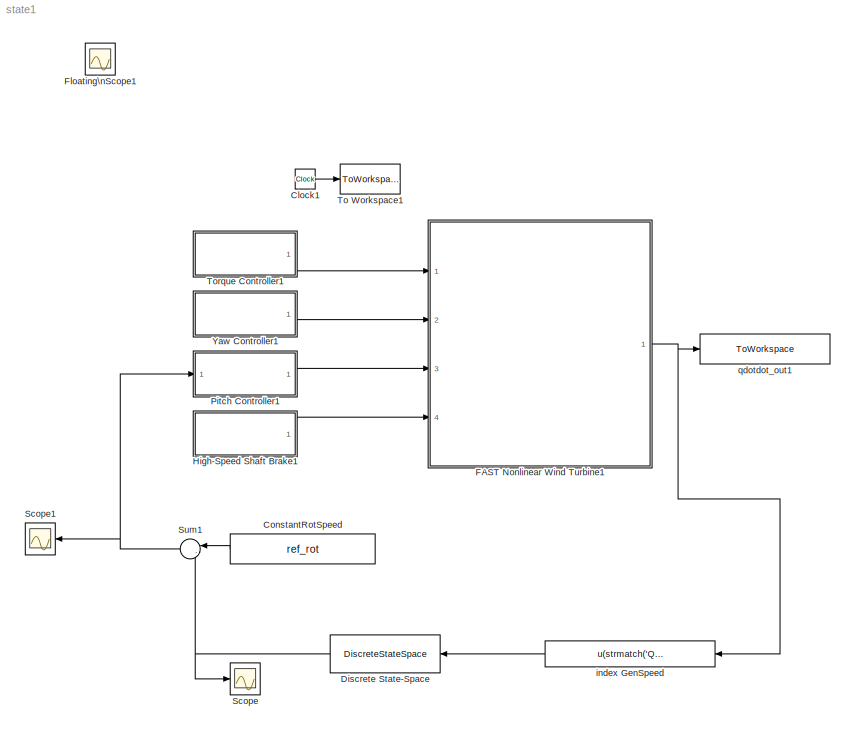
MODEL state1
KIND model
BLOCK [Clock] Clock1
  SID = 189
BLOCK [Constant] ConstantRotSpeed
  SID = 181
  Value = ref_rot
BLOCK [DiscreteStateSpace] Discrete State-Space
  A = alpha
  B = 1-alpha
  C = alpha
  D = 1-alpha
  InitialCondition = ref_rot
  SID = 238
  SampleTime = DT
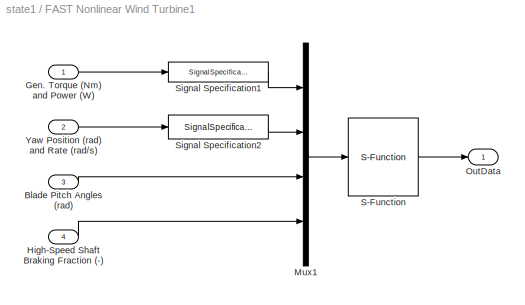
BLOCK [SubSystem] FAST Nonlinear Wind Turbine1
  Ports = [4, 1]
  RequestExecContextInheritance = off
  SID = 190
  Variant = off
BLOCK [Inport] FAST Nonlinear Wind Turbine1/Blade Pitch Angles (rad)
  IconDisplay = Port number
  Port = 3
  SID = 193
BLOCK [Inport] FAST Nonlinear Wind Turbine1/Gen. Torque (Nm) and Power (W)
  IconDisplay = Port number
  SID = 191
BLOCK [Inport] FAST Nonlinear Wind Turbine1/High-Speed Shaft Braking Fraction (-)
  IconDisplay = Port number
  Port = 4
  SID = 194
BLOCK [Mux] FAST Nonlinear Wind Turbine1/Mux1
  DisplayOption = bar
  Ports = [4, 1]
  SID = 195
BLOCK [Outport] FAST Nonlinear Wind Turbine1/OutData
  IconDisplay = Port number
  SID = 199
BLOCK [S-Function] FAST Nonlinear Wind Turbine1/S-Function
  EnableBusSupport = off
  FunctionName = FAST_SFunc
  Parameters = FAST_InputFileName, TMax, 0
  Ports = [1, 1]
  SFcnIsStateOwnerBlock = off
  SFunctionDeploymentMode = off
  SID = 196
BLOCK [SignalSpecification] FAST Nonlinear Wind Turbine1/Signal Specification1
  Dimensions = 2
  OutDataTypeStr = double
  SID = 197
  SignalType = real
BLOCK [SignalSpecification] FAST Nonlinear Wind Turbine1/Signal Specification2
  Dimensions = 2
  OutDataTypeStr = double
  SID = 198
  SignalType = real
BLOCK [Inport] FAST Nonlinear Wind Turbine1/Yaw Position (rad) and Rate (rad//s)
  IconDisplay = Port number
  Port = 2
  SID = 192
BLOCK [Scope] Floating\nScope1
  IOType = viewer
  NumInputPorts = 1
  Ports = []
  SID = 148
  ScopeSpecificationString = C++SS(StrPVP('Location','[207, 245, 1311, 700]'),StrPVP('Open','off'),MxPVP('AxesTitles',53,'struct(''axes1'',''%<SignalLabel>'')'),MxPVP('ScopeGraphics',56,'struct(''FigureColor'',''[0.5 0.5 0.5]'',''AxesColor'',''[0 0 0]'',''AxesTickColor'',''[1 1 1]'',''LineColors'',''[1 1 0;1 0 1;0 1 1;1 0 0;0 1 0;0 0 1]'',''LineStyles'',''-|-|-|-|-|-'',''LineWidths'',''[0.5 0.5 0.5 0.5 0.5 0.5]'',''MarkerStyl...<+278ch>
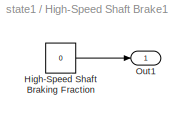
BLOCK [SubSystem] High-Speed Shaft Brake1
  Ports = [0, 1]
  RequestExecContextInheritance = off
  SID = 200
  Variant = off
BLOCK [Constant] High-Speed Shaft Brake1/High-Speed Shaft Braking Fraction
  SID = 201
  Value = 0
BLOCK [Outport] High-Speed Shaft Brake1/Out1
  IconDisplay = Port number
  SID = 202
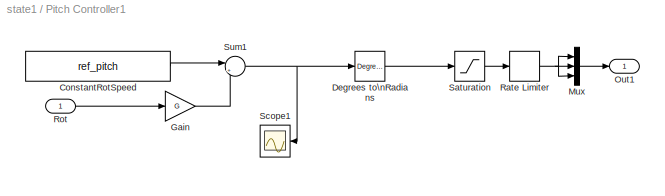
BLOCK [SubSystem] Pitch Controller1
  Ports = [1, 1]
  RequestExecContextInheritance = off
  SID = 203
  Variant = off
BLOCK [Constant] Pitch Controller1/ConstantRotSpeed
  SID = 237
  Value = ref_pitch
BLOCK [Reference] Pitch Controller1/Degrees to\nRadians  REF=simulink_extras/Transformations/Degrees to\nRadians
  Ports = [1, 1]
  SID = 233
  SourceBlock = simulink_extras/Transformations/Degrees to\nRadians
  SourceProductBaseCode = SL
  SourceProductName = Simulink
  SourceType = DegreesToRadians
BLOCK [Gain] Pitch Controller1/Gain
  Gain = G
  OutDataTypeStr = Inherit: Inherit via internal rule
  ParamDataTypeStr = Inherit: Inherit via internal rule
  SID = 240
  SaturateOnIntegerOverflow = off
BLOCK [Mux] Pitch Controller1/Mux
  DisplayOption = bar
  Inputs = 3
  Ports = [3, 1]
  SID = 217
BLOCK [Outport] Pitch Controller1/Out1
  IconDisplay = Port number
  SID = 220
BLOCK [RateLimiter] Pitch Controller1/Rate Limiter
  FallingSlewLimit = -PC_MaxRat
  RisingSlewLimit = PC_MaxRat
  SID = 218
  SampleTimeMode = inherited
BLOCK [Inport] Pitch Controller1/Rot
  IconDisplay = Port number
  SID = 235
BLOCK [Saturate] Pitch Controller1/Saturation
  InputPortMap = u0
  LowerLimit = PC_MinPit
  Ports = [1, 1]
  SID = 219
  UpperLimit = PC_MaxPit
BLOCK [Scope] Pitch Controller1/Scope1
  NumInputPorts = 1
  Ports = [1]
  SID = 239
  ScopeSpecificationString = C++SS(StrPVP('Location','[1, 49, 1921, 1039]'),StrPVP('Open','off'),MxPVP('AxesTitles',53,'struct(''axes1'',''%<SignalLabel>'')'),MxPVP('ScopeGraphics',56,'struct(''FigureColor'',''[0.5 0.5 0.5]'',''AxesColor'',''[0 0 0]'',''AxesTickColor'',''[1 1 1]'',''LineColors'',''[1 1 0;1 0 1;0 1 1;1 0 0;0 1 0;0 0 1]'',''LineStyles'',''-|-|-|-|-|-'',''LineWidths'',''[0.5 0.5 0.5 0.5 0.5 0.5]'',''MarkerStyles...<+317ch>
BLOCK [Sum] Pitch Controller1/Sum1
  IconShape = round
  InputSameDT = off
  Inputs = |++
  OutDataTypeStr = Inherit: Inherit via internal rule
  Ports = [2, 1]
  SID = 236
  SaturateOnIntegerOverflow = off
BLOCK [Scope] Scope
  NumInputPorts = 1
  Ports = [1]
  SID = 183
  ScopeSpecificationString = C++SS(StrPVP('Location','[957, 57, 1915, 1038]'),StrPVP('Open','off'),MxPVP('AxesTitles',53,'struct(''axes1'',''%<SignalLabel>'')'),MxPVP('ScopeGraphics',56,'struct(''FigureColor'',''[0.5 0.5 0.5]'',''AxesColor'',''[0 0 0]'',''AxesTickColor'',''[1 1 1]'',''LineColors'',''[1 1 0;1 0 1;0 1 1;1 0 0;0 1 0;0 0 1]'',''LineStyles'',''-|-|-|-|-|-'',''LineWidths'',''[0.5 0.5 0.5 0.5 0.5 0.5]'',''MarkerStyl...<+283ch>
BLOCK [Scope] Scope1
  NumInputPorts = 1
  Ports = [1]
  SID = 185
  ScopeSpecificationString = C++SS(StrPVP('Location','[336, 149, 660, 388]'),StrPVP('Open','off'),MxPVP('AxesTitles',53,'struct(''axes1'',''%<SignalLabel>'')'),MxPVP('ScopeGraphics',56,'struct(''FigureColor'',''[0.5 0.5 0.5]'',''AxesColor'',''[0 0 0]'',''AxesTickColor'',''[1 1 1]'',''LineColors'',''[1 1 0;1 0 1;0 1 1;1 0 0;0 1 0;0 0 1]'',''LineStyles'',''-|-|-|-|-|-'',''LineWidths'',''[0.5 0.5 0.5 0.5 0.5 0.5]'',''MarkerStyle...<+317ch>
BLOCK [Sum] Sum1
  IconShape = round
  InputSameDT = off
  Inputs = |-+
  OutDataTypeStr = Inherit: Inherit via internal rule
  Ports = [2, 1]
  SID = 182
  SaturateOnIntegerOverflow = off
BLOCK [ToWorkspace] To Workspace1
  MaxDataPoints = inf
  Ports = [1]
  SID = 221
  SampleTime = -1
  VariableName = Time1
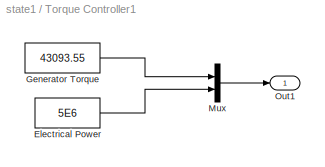
BLOCK [SubSystem] Torque Controller1
  Ports = [0, 1]
  RequestExecContextInheritance = off
  SID = 222
  Variant = off
BLOCK [Constant] Torque Controller1/Electrical Power
  SID = 223
  Value = 5E6
BLOCK [Constant] Torque Controller1/Generator Torque
  SID = 224
  Value = 43093.55
BLOCK [Mux] Torque Controller1/Mux
  DisplayOption = bar
  Inputs = 2
  Ports = [2, 1]
  SID = 225
BLOCK [Outport] Torque Controller1/Out1
  IconDisplay = Port number
  SID = 226
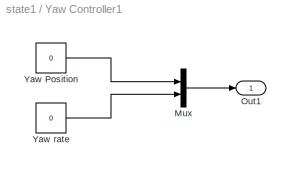
BLOCK [SubSystem] Yaw Controller1
  Ports = [0, 1]
  RequestExecContextInheritance = off
  SID = 227
  Variant = off
BLOCK [Mux] Yaw Controller1/Mux
  DisplayOption = bar
  Inputs = 2
  Ports = [2, 1]
  SID = 228
BLOCK [Outport] Yaw Controller1/Out1
  IconDisplay = Port number
  SID = 231
BLOCK [Constant] Yaw Controller1/Yaw Position
  SID = 229
  Value = 0
BLOCK [Constant] Yaw Controller1/Yaw rate
  SID = 230
  Value = 0
BLOCK [Fcn] index GenSpeed
  Expr = u(strmatch('QD_GeAz', OutList))
  SID = 87
BLOCK [ToWorkspace] qdotdot_out1
  MaxDataPoints = inf
  Ports = [1]
  SID = 232
  SampleTime = -1
  VariableName = OutData
LINE Clock1:1 -> To Workspace1:1
LINE ConstantRotSpeed:1 -> Sum1:1
NET Discrete State-Space:1 -> Scope:1, Sum1:2
LINE FAST Nonlinear Wind Turbine1/Blade Pitch Angles (rad):1 -> FAST Nonlinear Wind Turbine1/Mux1:3
LINE FAST Nonlinear Wind Turbine1/Gen. Torque (Nm) and Power (W):1 -> FAST Nonlinear Wind Turbine1/Signal Specification1:1
LINE FAST Nonlinear Wind Turbine1/High-Speed Shaft Braking Fraction (-):1 -> FAST Nonlinear Wind Turbine1/Mux1:4
LINE FAST Nonlinear Wind Turbine1/Mux1:1 -> FAST Nonlinear Wind Turbine1/S-Function:1
LINE FAST Nonlinear Wind Turbine1/S-Function:1 -> FAST Nonlinear Wind Turbine1/OutData:1
LINE FAST Nonlinear Wind Turbine1/Signal Specification1:1 -> FAST Nonlinear Wind Turbine1/Mux1:1
LINE FAST Nonlinear Wind Turbine1/Signal Specification2:1 -> FAST Nonlinear Wind Turbine1/Mux1:2
LINE FAST Nonlinear Wind Turbine1/Yaw Position (rad) and Rate (rad//s):1 -> FAST Nonlinear Wind Turbine1/Signal Specification2:1
NET FAST Nonlinear Wind Turbine1:1 -> index GenSpeed:1, qdotdot_out1:1
LINE High-Speed Shaft Brake1/High-Speed Shaft Braking Fraction:1 -> High-Speed Shaft Brake1/Out1:1
LINE High-Speed Shaft Brake1:1 -> FAST Nonlinear Wind Turbine1:4
LINE Pitch Controller1/ConstantRotSpeed:1 -> Pitch Controller1/Sum1:1
LINE Pitch Controller1/Degrees to\nRadians:1 -> Pitch Controller1/Saturation:1
LINE Pitch Controller1/Gain:1 -> Pitch Controller1/Sum1:2
LINE Pitch Controller1/Mux:1 -> Pitch Controller1/Out1:1
NET Pitch Controller1/Rate Limiter:1 -> Pitch Controller1/Mux:1, Pitch Controller1/Mux:2, Pitch Controller1/Mux:3
LINE Pitch Controller1/Rot:1 -> Pitch Controller1/Gain:1
LINE Pitch Controller1/Saturation:1 -> Pitch Controller1/Rate Limiter:1
NET Pitch Controller1/Sum1:1 -> Pitch Controller1/Degrees to\nRadians:1, Pitch Controller1/Scope1:1
LINE Pitch Controller1:1 -> FAST Nonlinear Wind Turbine1:3
NET Sum1:1 -> Pitch Controller1:1, Scope1:1
LINE Torque Controller1/Electrical Power:1 -> Torque Controller1/Mux:2
LINE Torque Controller1/Generator Torque:1 -> Torque Controller1/Mux:1
LINE Torque Controller1/Mux:1 -> Torque Controller1/Out1:1
LINE Torque Controller1:1 -> FAST Nonlinear Wind Turbine1:1
LINE Yaw Controller1/Mux:1 -> Yaw Controller1/Out1:1
LINE Yaw Controller1/Yaw Position:1 -> Yaw Controller1/Mux:1
LINE Yaw Controller1/Yaw rate:1 -> Yaw Controller1/Mux:2
LINE Yaw Controller1:1 -> FAST Nonlinear Wind Turbine1:2
LINE index GenSpeed:1 -> Discrete State-Space:1
note: NET lines group one-source signal fan-out (src -> all destinations, sorted); 1:1 wires keep LINE
